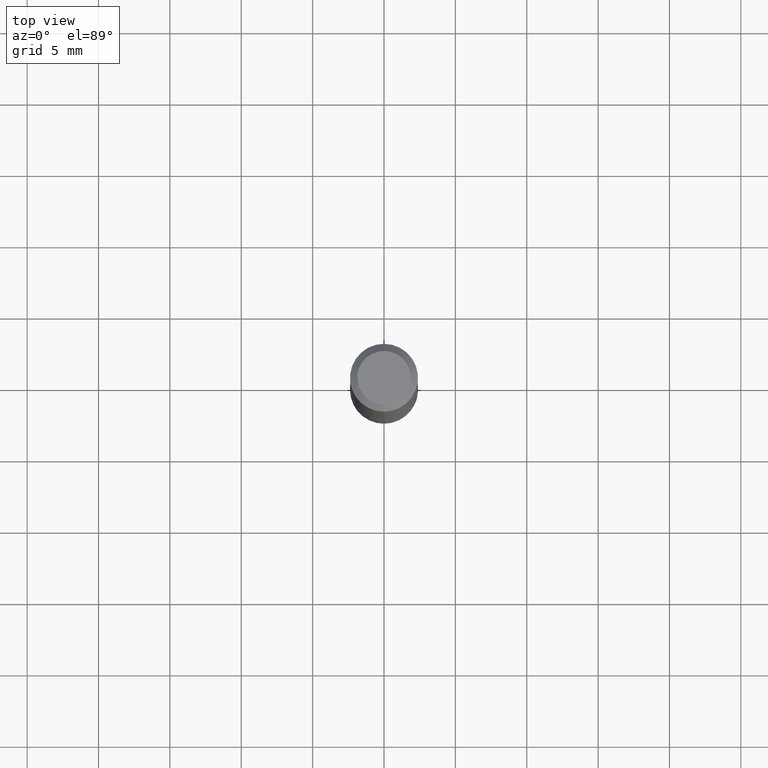
[diagram: clean part render]
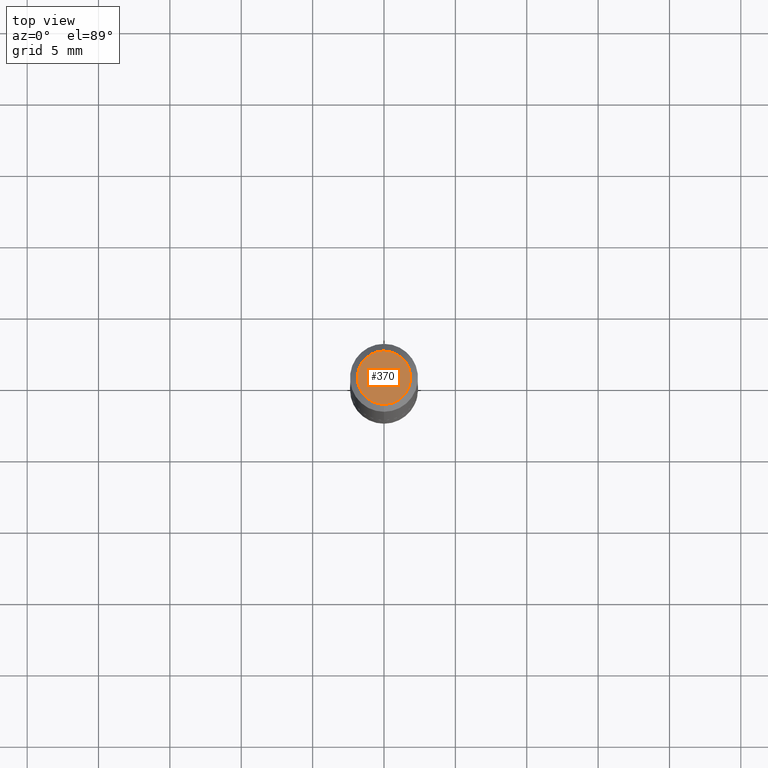
[diagram: same view with one face highlighted and labeled with its STEP entity id]
A machine part, top view. The second image highlights one B-rep face of the part: STEP entity #370.
In plain terms, the highlighted planar face has unit normal (0, -0, -1).
Its self-contained STEP definition (entity closure, byte-faithful):
#107 = CARTESIAN_POINT ( 'NONE',  ( 5.149934974793623868E-16, 0.07375000000000005163, -2.660692322451522650E-16 ) ) ;
#127 = DIRECTION ( 'NONE',  ( -6.982962677686265133E-15, -1.000000000000000000, 3.492442925969092226E-15 ) ) ;
#130 = DIRECTION ( 'NONE',  ( -6.982962677686265133E-15, -1.000000000000000000, 3.492442925969092226E-15 ) ) ;
#140 = EDGE_CURVE ( 'NONE', #275, #304, #247, .T. ) ;
#141 = DIRECTION ( 'NONE',  ( 6.982962677686265922E-15, 1.000000000000000000, -3.492442925969092620E-15 ) ) ;
#161 = DIRECTION ( 'NONE',  ( -2.444797333483953649E-29, 3.492442925969092226E-15, 1.000000000000000000 ) ) ;
#176 = CARTESIAN_POINT ( 'NONE',  ( 4.156921399890651466E-46, -5.938247125036358408E-32, -1.700313290986308217E-17 ) ) ;
#195 = CIRCLE ( 'NONE', #288, 0.07375000000000005163 ) ;
#211 = DIRECTION ( 'NONE',  ( -2.444797333483953649E-29, 3.492442925969092226E-15, 1.000000000000000000 ) ) ;
#218 = CARTESIAN_POINT ( 'NONE',  ( -5.745667073133655554E-16, -0.07375000000000005163, 2.405645328803576480E-16 ) ) ;
#231 = EDGE_LOOP ( 'NONE', ( #361, #394 ) ) ;
#235 = DIRECTION ( 'NONE',  ( 2.444797333483953089E-29, -3.492442925969092620E-15, -1.000000000000000000 ) ) ;
#247 = CIRCLE ( 'NONE', #287, 0.07375000000000005163 ) ;
#259 = EDGE_CURVE ( 'NONE', #304, #275, #195, .T. ) ;
#264 = PLANE ( 'NONE',  #351 ) ;
#275 = VERTEX_POINT ( 'NONE', #412 ) ;
#287 = AXIS2_PLACEMENT_3D ( 'NONE', #176, #211, #127 ) ;
#288 = AXIS2_PLACEMENT_3D ( 'NONE', #384, #161, #130 ) ;
#304 = VERTEX_POINT ( 'NONE', #218 ) ;
#336 = FACE_OUTER_BOUND ( 'NONE', #231, .T. ) ;
#351 = AXIS2_PLACEMENT_3D ( 'NONE', #107, #235, #141 ) ;
#361 = ORIENTED_EDGE ( 'NONE', *, *, #140, .T. ) ;
#370 = ADVANCED_FACE ( 'NONE', ( #336 ), #264, .F. ) ;
#384 = CARTESIAN_POINT ( 'NONE',  ( 4.156921399890651466E-46, -5.938247125036358408E-32, -1.700313290986308217E-17 ) ) ;
#394 = ORIENTED_EDGE ( 'NONE', *, *, #259, .T. ) ;
#412 = CARTESIAN_POINT ( 'NONE',  ( 5.848231242562251920E-16, 0.07375000000000005163, -2.745707987000838369E-16 ) ) ;